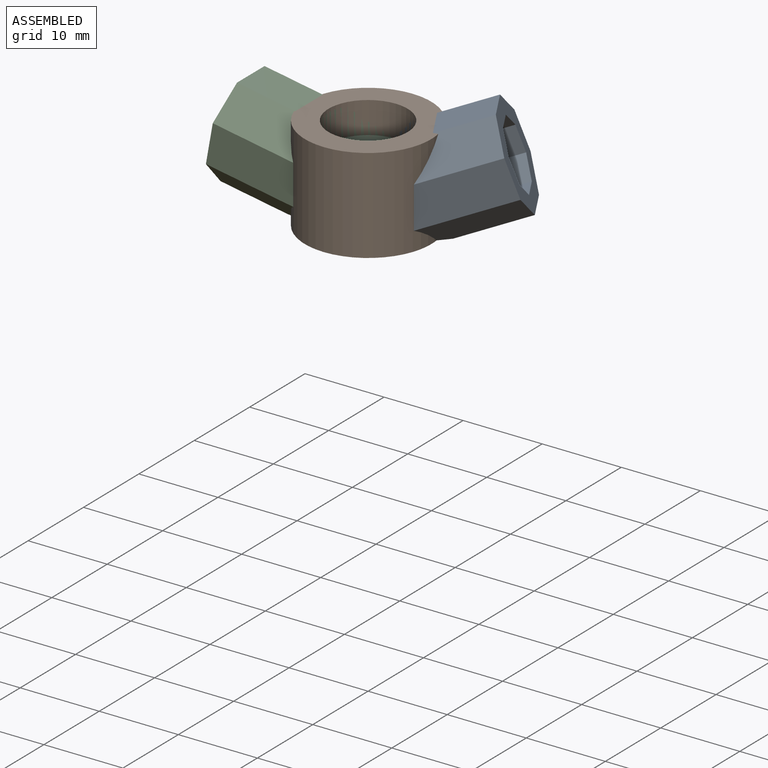
[diagram: assembled view]
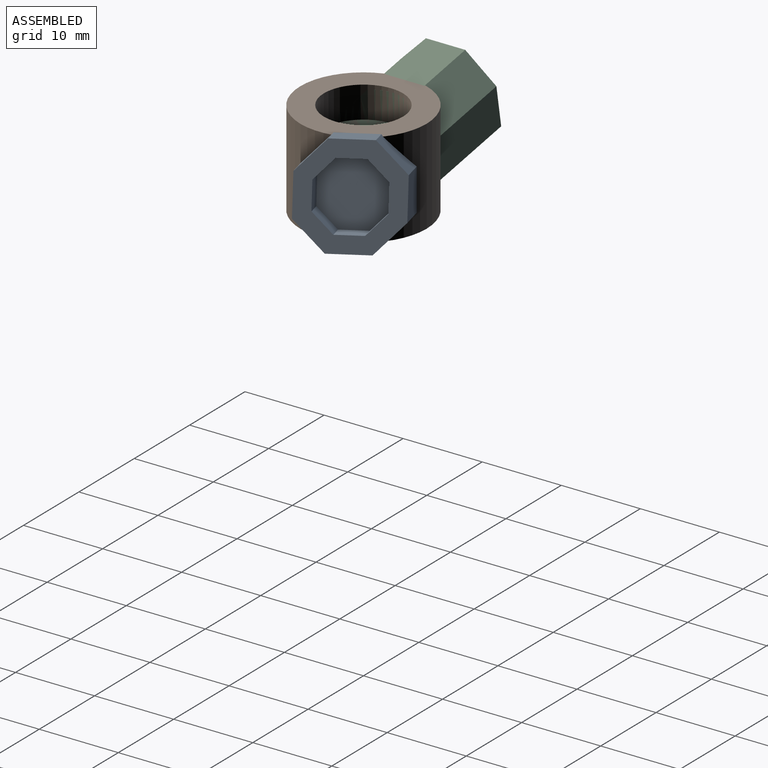
[diagram: assembled view, second angle]
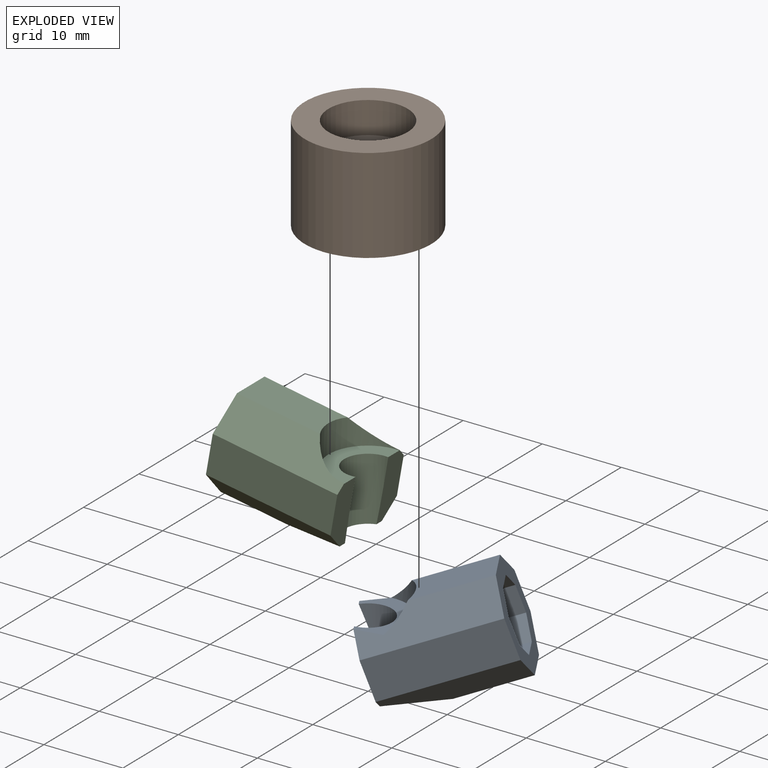
[diagram: exploded view]
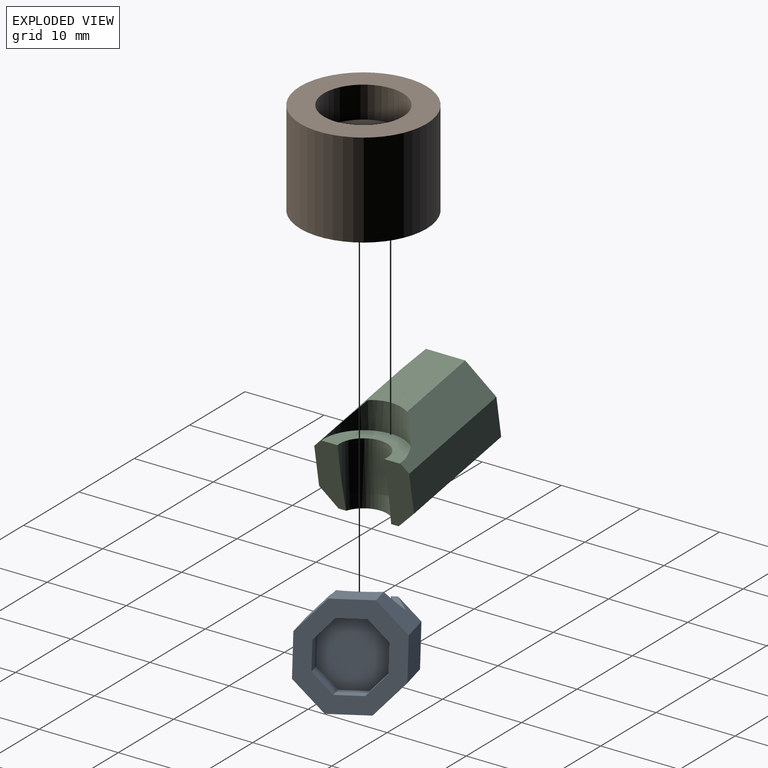
[diagram: exploded view, second angle]
ASSEMBLY  parts=3 mates=2
PART A: 24 faces, bbox 12x18.8x14.4 mm
  f0: plane 8x3.5mm, normal (0,0.94,-0.34), area 22.9mm2, adj f1,f8,f17,f20,f22,f23
  f1: plane 15.91x8.71mm, normal (0.71,0.24,0.67), area 67.3mm2, adj f0,f4,f17,f18,f21,f22
  f2: plane 15.91x8.71mm, normal (-0.71,0.24,0.67), area 67.3mm2, adj f3,f4,f5,f18,f21,f22
  f3: plane 8x3.5mm, normal (0,0.94,-0.34), area 22.9mm2, adj f2,f5,f6,f20,f22,f23
  f4: plane 9.16x4.97mm, normal (0,0.34,0.94), area 46mm2, adj f1,f2,f18,f21
  f5: plane 16.74x10.09mm, normal (-1,0,0), area 79.5mm2, adj f2,f3,f6,f18
  f6: plane 16.25x6.36mm, normal (-0.71,-0.24,-0.67), area 67.2mm2, adj f3,f5,f7,f18,f23
  f7: plane 8.51x4.97mm, normal (0,-0.34,-0.94), area 45mm2, adj f6,f8,f18,f23
  f8: plane 16.25x6.36mm, normal (0.71,-0.24,-0.67), area 67.2mm2, adj f0,f7,f17,f18,f23
  f9: plane 5.65x3.31mm, normal (0,-0.34,-0.94), area 19.9mm2, adj f10,f16,f18,f19
  f10: plane 6.44x4.23mm, normal (-0.71,-0.24,-0.67), area 19.9mm2, adj f9,f11,f18,f19
  f11: plane 6.77x5.15mm, normal (-1,0,0), area 19.9mm2, adj f10,f12,f18,f19
  f12: plane 6.44x4.23mm, normal (-0.71,0.24,0.67), area 19.9mm2, adj f11,f13,f18,f19
  f13: plane 5.65x3.31mm, normal (0,0.34,0.94), area 19.9mm2, adj f12,f14,f18,f19
  f14: plane 6.44x4.23mm, normal (0.71,0.24,0.67), area 19.9mm2, adj f13,f15,f18,f19
  f15: plane 6.77x5.15mm, normal (1,0,0), area 19.9mm2, adj f14,f16,f18,f19
  f16: plane 6.44x4.23mm, normal (0.71,-0.24,-0.67), area 19.9mm2, adj f9,f15,f18,f19
  f17: plane 16.74x10.09mm, normal (1,0,0), area 79.5mm2, adj f0,f1,f8,f18
  f18: plane 12x11.29mm, normal (0,-0.94,0.34), area 66.3mm2, adj f1,f2,f4,f5,f6,f7,f8,f9
  f19: plane 8x7.53mm, normal (0,-0.94,0.34), area 53mm2, adj f9,f10,f11,f12,f13,f14,f15,f16
  f20: cylinder r=3mm len=8mm, axis (0,0,1), area 71.8mm2, adj f0,f3,f22,f23
  f21: cylinder r=5mm len=9.16mm, axis (0,0,-1), area 25.9mm2, adj f1,f2,f4,f22
  f22: plane 9.16x6.22mm, normal (0,0,1), area 24.5mm2, adj f0,f1,f2,f3,f20,f21
  f23: plane 9.97x7.39mm, normal (0,0,-1), area 50.4mm2, adj f0,f3,f6,f7,f8,f20
PART B: 6 faces, bbox 16x16x12 mm
  f0: cylinder r=3mm len=8mm, axis (0,0,1), area 150.8mm2, adj f3,f5
  f1: cylinder r=8mm len=16mm, axis (0,0,-1), area 603.2mm2, adj f2,f3
  f2: plane 16x16mm, normal (0,0,1), area 122.5mm2, adj f1,f4
  f3: plane 16x16mm, normal (0,0,-1), area 172.8mm2, adj f0,f1
  f4: cylinder r=5mm len=10mm, axis (0,0,-1), area 125.7mm2, adj f2,f5
  f5: plane 10x10mm, normal (0,0,1), area 50.3mm2, adj f0,f4
PART C: 24 faces, bbox 12x17.4x13.3 mm
  f0: plane 8.07x3.15mm, normal (0,0.98,-0.17), area 21.8mm2, adj f2,f8,f17,f20,f21,f22,f23
  f1: plane 8.07x3.15mm, normal (0,0.98,-0.17), area 21.8mm2, adj f4,f5,f6,f20,f21,f22,f23
  f2: plane 15.93x6.24mm, normal (0.71,0.12,0.7), area 65.9mm2, adj f0,f3,f17,f18,f21
  f3: plane 10.5x4.97mm, normal (0,0.17,0.98), area 50.7mm2, adj f2,f4,f18,f21
  f4: plane 15.93x6.24mm, normal (-0.71,0.12,0.7), area 65.9mm2, adj f1,f3,f5,f18,f21
  f5: plane 16.62x7.67mm, normal (-1,0,0), area 79.5mm2, adj f1,f4,f6,f18
  f6: plane 16.37x4.94mm, normal (-0.71,-0.12,-0.7), area 72.6mm2, adj f1,f5,f7,f18,f23
  f7: plane 8.4x4.97mm, normal (0,-0.17,-0.98), area 42.4mm2, adj f6,f8,f18,f23
  f8: plane 16.37x4.94mm, normal (0.71,-0.12,-0.7), area 72.6mm2, adj f0,f7,f17,f18,f23
  f9: plane 5.91x3.31mm, normal (0,-0.17,-0.98), area 19.9mm2, adj f10,f16,f18,f19
  f10: plane 6.32x3.35mm, normal (-0.71,-0.12,-0.7), area 19.9mm2, adj f9,f11,f18,f19
  f11: plane 6.48x4.31mm, normal (-1,0,0), area 19.9mm2, adj f10,f12,f18,f19
  f12: plane 6.32x3.35mm, normal (-0.71,0.12,0.7), area 19.9mm2, adj f11,f13,f18,f19
  f13: plane 5.91x3.31mm, normal (0,0.17,0.98), area 19.9mm2, adj f12,f14,f18,f19
  f14: plane 6.32x3.35mm, normal (0.71,0.12,0.7), area 19.9mm2, adj f13,f15,f18,f19
  f15: plane 6.48x4.31mm, normal (1,0,0), area 19.9mm2, adj f14,f16,f18,f19
  f16: plane 6.32x3.35mm, normal (0.71,-0.12,-0.7), area 19.9mm2, adj f9,f15,f18,f19
  f17: plane 16.62x7.67mm, normal (1,0,0), area 79.5mm2, adj f0,f2,f8,f18
  f18: plane 12x11.82mm, normal (0,-0.98,0.17), area 66.3mm2, adj f2,f3,f4,f5,f6,f7,f8,f9
  f19: plane 8x7.88mm, normal (0,-0.98,0.17), area 53mm2, adj f9,f10,f11,f12,f13,f14,f15,f16
  f20: cylinder r=3mm len=8mm, axis (0,0,1), area 71.7mm2, adj f0,f1,f22,f23
  f21: cylinder r=5mm len=10mm, axis (0,0,-1), area 33.5mm2, adj f0,f1,f2,f3,f4,f22
  f22: plane 10x5.48mm, normal (0,0,1), area 27mm2, adj f0,f1,f20,f21
  f23: plane 7.61x7.59mm, normal (0,0,-1), area 39.1mm2, adj f0,f1,f6,f7,f8,f20
PLACE A rot(axis=(0,0,1),120deg) t=(0,0,0)mm
PLACE B rot(axis=(0,0,-1),90deg) t=(0,0,0)mm
PLACE C rot(axis=(0,0,-1),90deg) t=(0,0,0)mm
MATE fastened B.f1 <-> C.f21  axis (0,0,-1) through (0,0,-6)mm
MATE revolute B.f1 <-> A.f21  axis (0,0,-1) through (0,0,-6)mm
